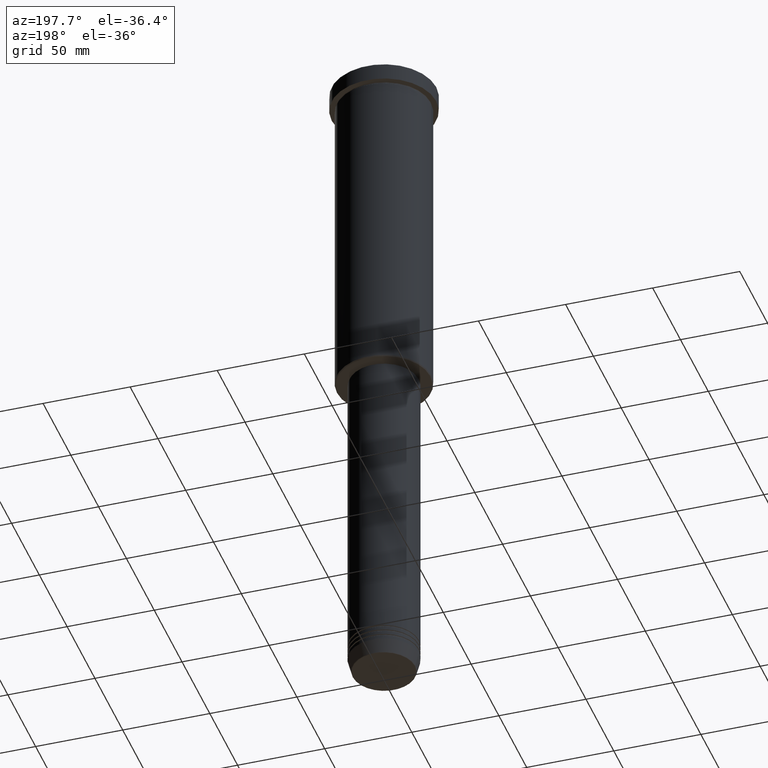
[diagram: clean part render]
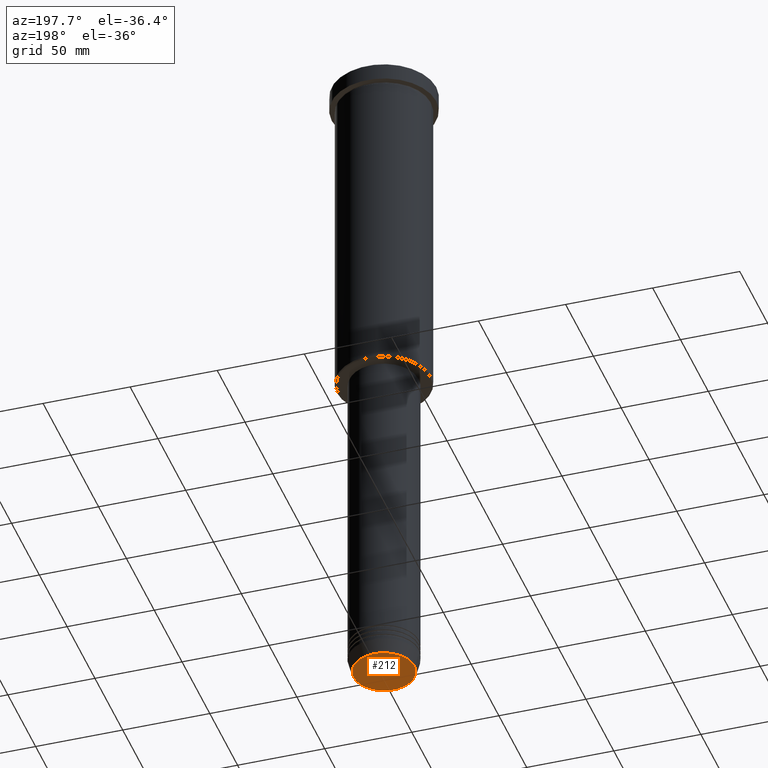
[diagram: same view with one face highlighted and labeled with its STEP entity id]
A machine part, auxiliary view. The second image highlights one B-rep face of the part: STEP entity #212.
In plain terms, the highlighted planar face has unit normal (0, -0, 1).
Its self-contained STEP definition (entity closure, byte-faithful):
#63 = DIRECTION ( 'NONE',  ( 1.000000000000000000, 0.000000000000000000, 0.000000000000000000 ) ) ;
#134 = DIRECTION ( 'NONE',  ( 0.000000000000000000, -0.000000000000000000, 1.000000000000000000 ) ) ;
#212 = ADVANCED_FACE ( 'NONE', ( #491 ), #737, .F. ) ;
#233 = CIRCLE ( 'NONE', #986, 17.47274296656153325 ) ;
#383 = EDGE_LOOP ( 'NONE', ( #807, #1150 ) ) ;
#411 = CIRCLE ( 'NONE', #898, 17.47274296656153325 ) ;
#421 = DIRECTION ( 'NONE',  ( 1.000000000000000000, 0.000000000000000000, 0.000000000000000000 ) ) ;
#454 = DIRECTION ( 'NONE',  ( 0.000000000000000000, 0.000000000000000000, -1.000000000000000000 ) ) ;
#484 = VERTEX_POINT ( 'NONE', #685 ) ;
#487 = VERTEX_POINT ( 'NONE', #591 ) ;
#491 = FACE_OUTER_BOUND ( 'NONE', #383, .T. ) ;
#533 = DIRECTION ( 'NONE',  ( 0.000000000000000000, 0.000000000000000000, -1.000000000000000000 ) ) ;
#590 = EDGE_CURVE ( 'NONE', #484, #487, #233, .T. ) ;
#591 = CARTESIAN_POINT ( 'NONE',  ( -17.47274296656153325, 2.169366823916868109E-15, -391.0000000000000000 ) ) ;
#646 = EDGE_CURVE ( 'NONE', #487, #484, #411, .T. ) ;
#685 = CARTESIAN_POINT ( 'NONE',  ( 17.47274296656153325, 0.000000000000000000, -391.0000000000000000 ) ) ;
#737 = PLANE ( 'NONE',  #808 ) ;
#806 = DIRECTION ( 'NONE',  ( 1.000000000000000000, 0.000000000000000000, 0.000000000000000000 ) ) ;
#807 = ORIENTED_EDGE ( 'NONE', *, *, #590, .T. ) ;
#808 = AXIS2_PLACEMENT_3D ( 'NONE', #841, #134, #421 ) ;
#841 = CARTESIAN_POINT ( 'NONE',  ( 0.000000000000000000, 0.000000000000000000, -391.0000000000000000 ) ) ;
#898 = AXIS2_PLACEMENT_3D ( 'NONE', #975, #533, #806 ) ;
#975 = CARTESIAN_POINT ( 'NONE',  ( 0.000000000000000000, 0.000000000000000000, -391.0000000000000000 ) ) ;
#986 = AXIS2_PLACEMENT_3D ( 'NONE', #1076, #454, #63 ) ;
#1076 = CARTESIAN_POINT ( 'NONE',  ( 0.000000000000000000, 0.000000000000000000, -391.0000000000000000 ) ) ;
#1150 = ORIENTED_EDGE ( 'NONE', *, *, #646, .T. ) ;